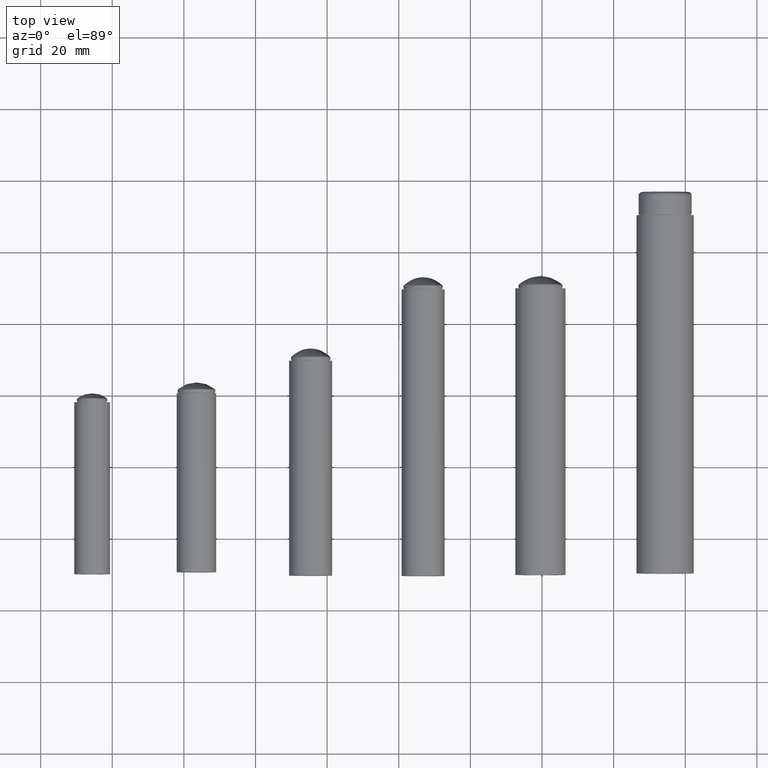
[diagram: clean part render]
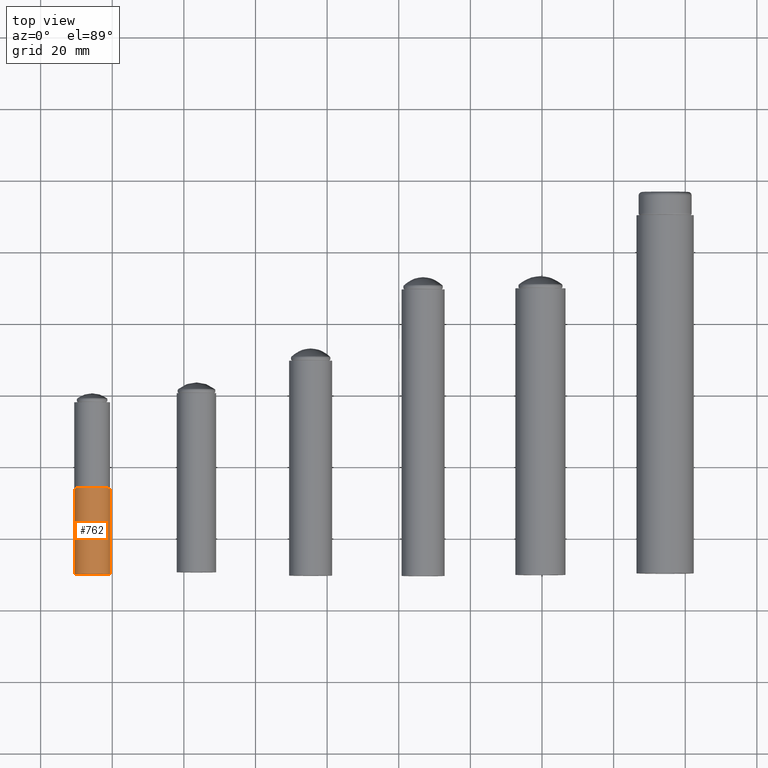
[diagram: same view with one face highlighted and labeled with its STEP entity id]
A machine part, top view. The second image highlights one B-rep face of the part: STEP entity #762.
In plain terms, the highlighted cylindrical surface (bore or boss wall) has radius 5 mm, axis along (0, 1, 0).
Its self-contained STEP definition (entity closure, byte-faithful):
#198=FACE_BOUND('',#320,.T.);
#252=FACE_OUTER_BOUND('',#319,.T.);
#319=EDGE_LOOP('',(#619));
#320=EDGE_LOOP('',(#620));
#439=CIRCLE('',#844,5.);
#440=CIRCLE('',#845,5.);
#499=VERTEX_POINT('',#1353);
#500=VERTEX_POINT('',#1355);
#559=EDGE_CURVE('',#499,#499,#439,.T.);
#560=EDGE_CURVE('',#500,#500,#440,.T.);
#619=ORIENTED_EDGE('',*,*,#559,.F.);
#620=ORIENTED_EDGE('',*,*,#560,.F.);
#738=CYLINDRICAL_SURFACE('',#843,5.);
#762=ADVANCED_FACE('',(#252,#198),#738,.T.);
#843=AXIS2_PLACEMENT_3D('',#1352,#1016,#1017);
#844=AXIS2_PLACEMENT_3D('',#1354,#1018,#1019);
#845=AXIS2_PLACEMENT_3D('',#1356,#1020,#1021);
#1016=DIRECTION('center_axis',(0.,0.,1.));
#1017=DIRECTION('ref_axis',(-1.,0.,0.));
#1018=DIRECTION('center_axis',(0.,0.,1.));
#1019=DIRECTION('ref_axis',(-1.,0.,0.));
#1020=DIRECTION('center_axis',(0.,0.,-1.));
#1021=DIRECTION('ref_axis',(-1.,0.,0.));
#1352=CARTESIAN_POINT('Origin',(0.,0.,0.));
#1353=CARTESIAN_POINT('',(5.,6.12323399573677E-16,24.));
#1354=CARTESIAN_POINT('Origin',(0.,0.,24.));
#1355=CARTESIAN_POINT('',(5.,6.12323399573677E-16,0.));
#1356=CARTESIAN_POINT('Origin',(0.,0.,0.));